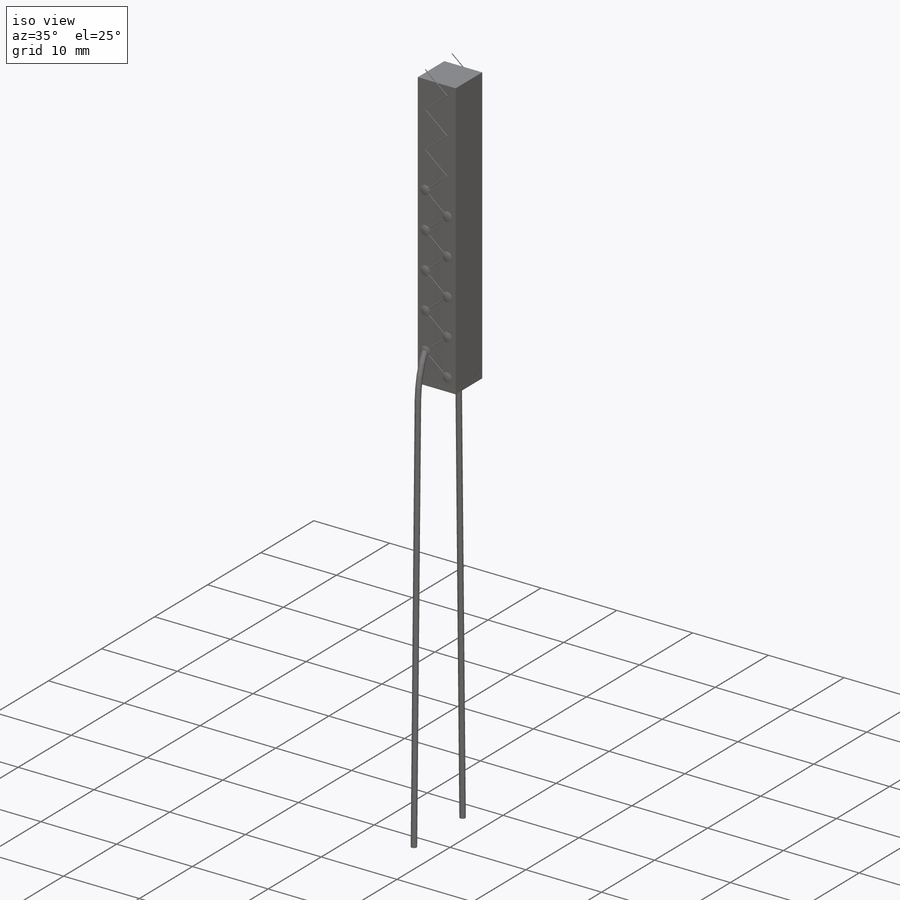
[diagram: iso view]
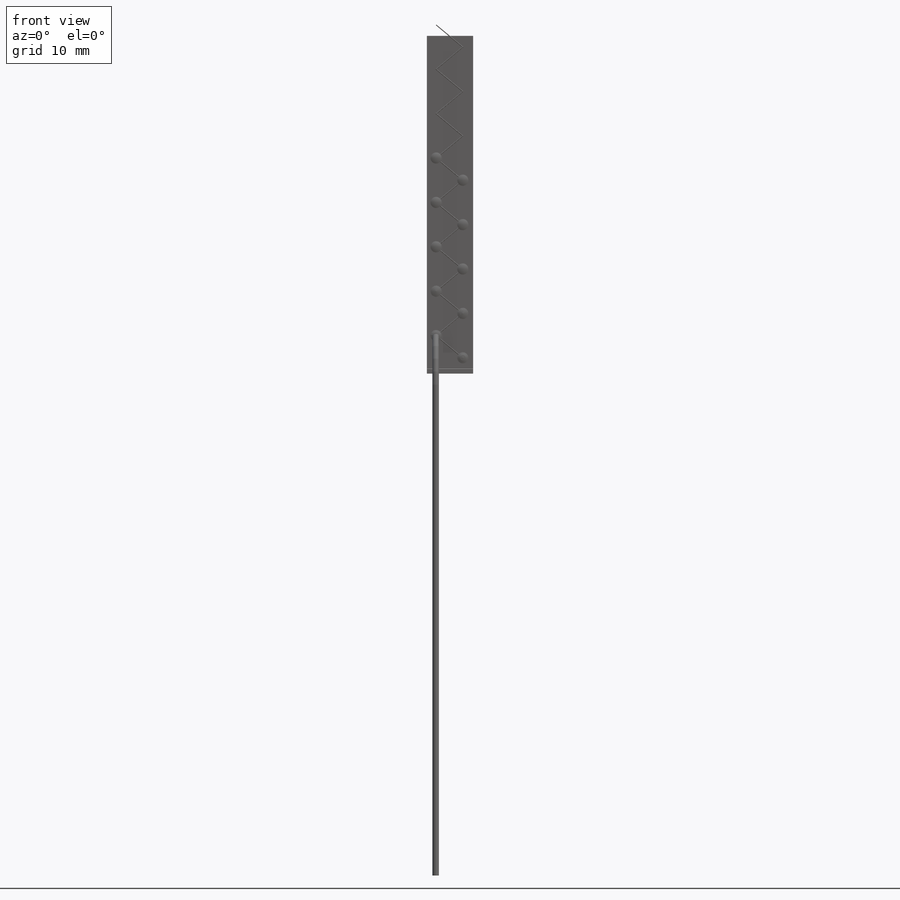
[diagram: front view]
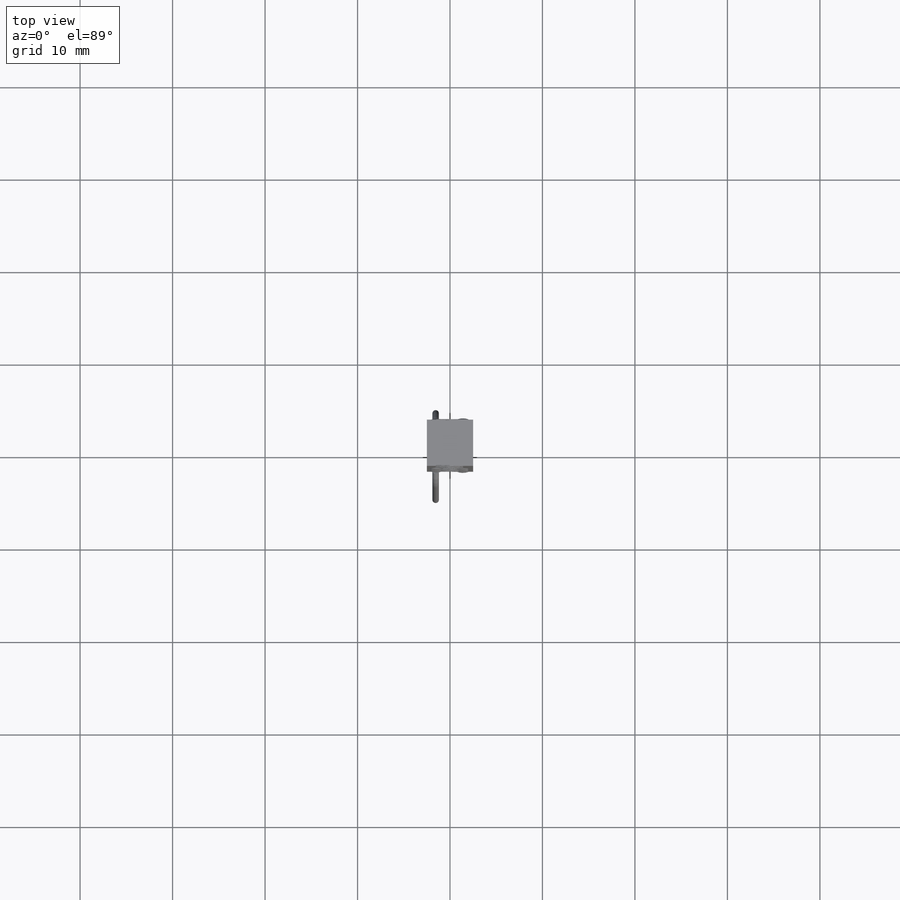
[diagram: top view]
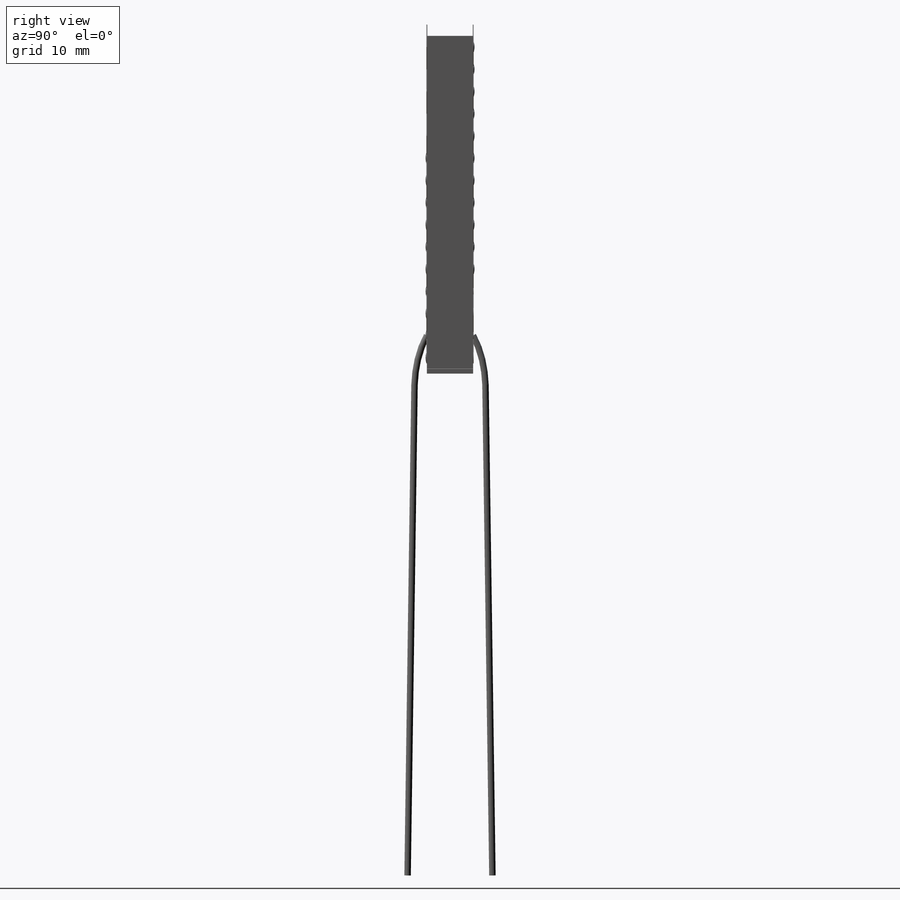
[diagram: right view]
SOLIDWORKS PART (.sldprt)
format: sldprt  version: not decoded by parser v0  size: 1,280,000 bytes
history: native  units: mm
features: dome x21, plane x15, sketch x9, mirror x7, extrude x4, sweep x2, material x1, pattern_linear x1 (+11 scaffold rows collapsed)
feature tree (71):
  scaffold x11  (default folders/planes/origin — collapsed)
  material  "Material <not specified>"
  sketch  "Sketch1"  dims[c1.D1=~27.482152mm c1.D2=~36.551262mm c2.D1=5.0mm c2.D2=110.0mm]
  extrude  "Boss-Extrude1"  Depth=2.4mm
  plane  "Plane1"  Offset=1.2mm
  pattern_linear  "LPattern3"  Count1=16 Count2=1 Spacing1=2.4001mm Spacing2=2.5mm
  plane  "Plane16"  Offset=0mm
  plane  "Plane17"  Offset=0.01mm
  sketch  "Sketch2"  dims[c1.D1=5.0mm c2.D1=90.0deg c2.D2=5.0mm]
  extrude  "Boss-Extrude2"  Depth=0.5mm
  sketch  "Sketch7"  dims[D1=~0.905428mm]
  extrude  "Boss-Extrude6"  Depth=0.05mm
  mirror  "Mirror45"
  dome  "Dome1"
  dome  "Dome5"
  dome  "Dome6"
  dome  "Dome7"
  plane  "Plane18"  Offset=0mm
  sketch  "Sketch8"
  plane  "Plane19"
  sketch  "Sketch9"  dims[D1=0.1mm]
  sweep  "Sweep1"
  plane  "Plane20"  Offset=2.5mm
  plane  "Plane21"  Offset=0mm
  plane  "Plane27"  Offset=15.6mm
  plane  "Plane22"  Offset=0.95mm
  sketch  "Sketch17"
  plane  "Plane23"
  sketch  "Sketch18"  dims[D1=0.7mm]
  sweep  "Sweep2"
  mirror  "Mirror2"
  plane  "Plane24"  Offset=2.5mm
  plane  "Plane25"  Offset=7.2mm
  dome  "Dome10"
  dome  "Dome11"
  dome  "Dome12"
  mirror  "Mirror12"
  plane  "Plane26"  Offset=2.5mm
  mirror  "Mirror20"
  mirror  "Mirror39"
  plane  "Plane38"  Offset=22.8mm
  mirror  "Mirror40"
  sketch  "Sketch20"  dims[D1=~2.845393mm]
  dome  "Dome14"
  dome  "Dome15"
  dome  "Dome16"
  dome  "Dome17"
  dome  "Dome18"
  dome  "Dome19"
  dome  "Dome20"
  dome  "Dome21"
  mirror  "Mirror41"
  dome  "Dome22"
  dome  "Dome23"
  dome  "Dome24"
  dome  "Dome25"
  dome  "Dome26"
  dome  "Dome27"
  plane  "Plane39"  Offset=0.001mm
  sketch  "Sketch21"  dims[D1=5.0mm D2=5.0mm]
  extrude  "Boss-Extrude7"  Depth=0.5mm
decode coverage: 12 of 44 modeling features carry decoded parameters
note: ~ marks probable driven/reference dimensions
note: suppression state not decoded; provenance and decode notes live in map.json
